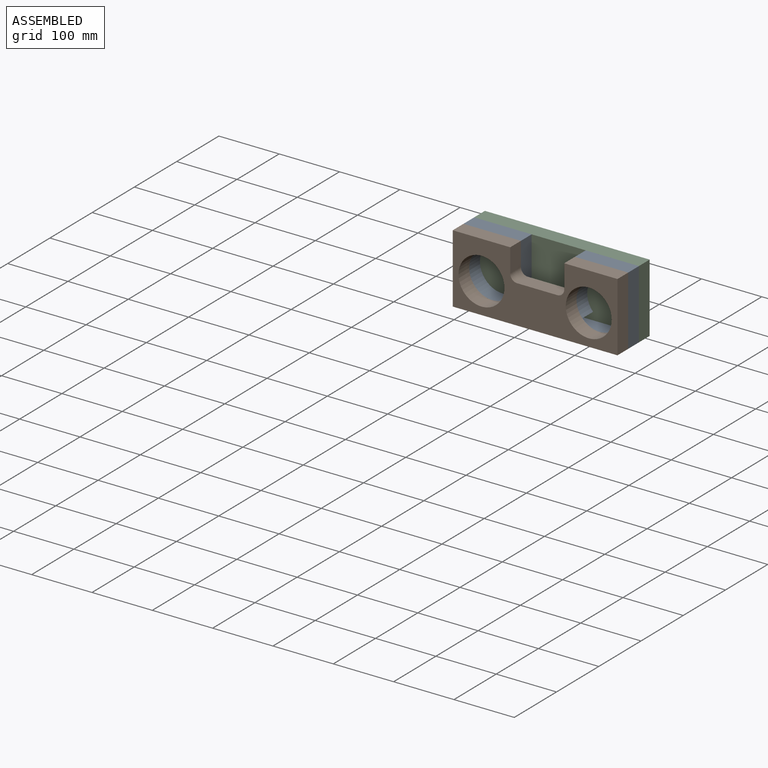
[diagram: assembled view]
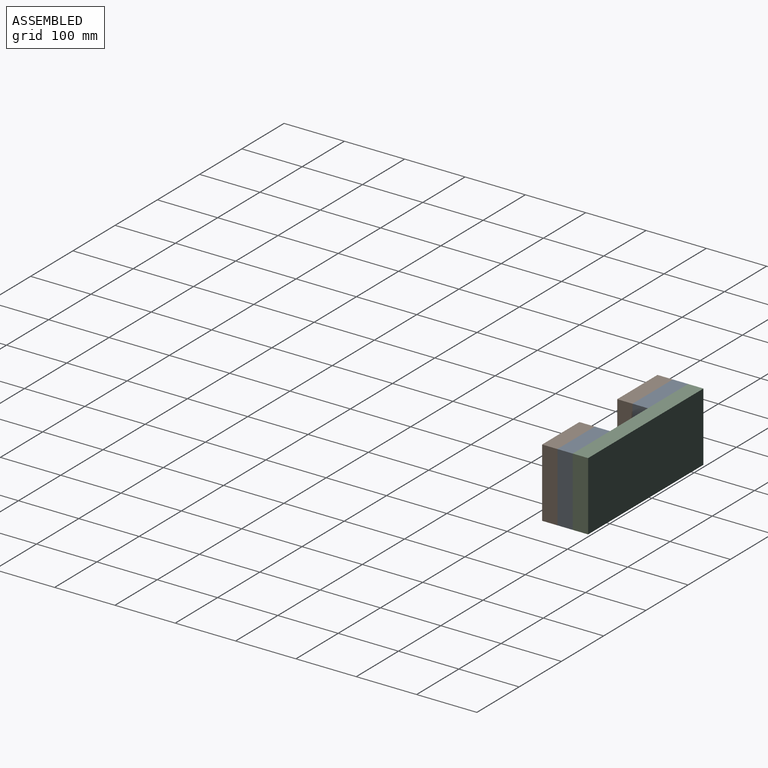
[diagram: assembled view, second angle]
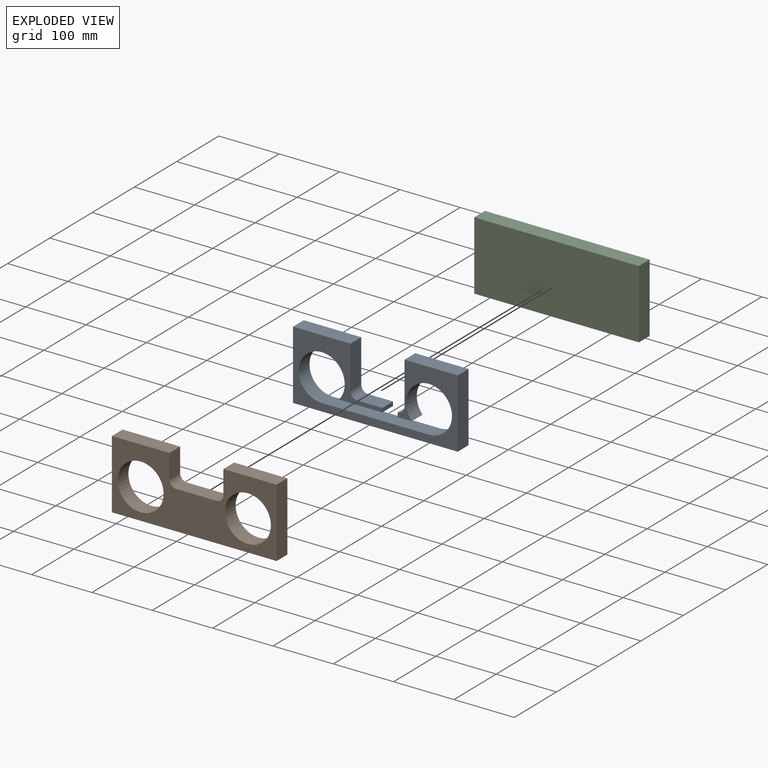
[diagram: exploded view]
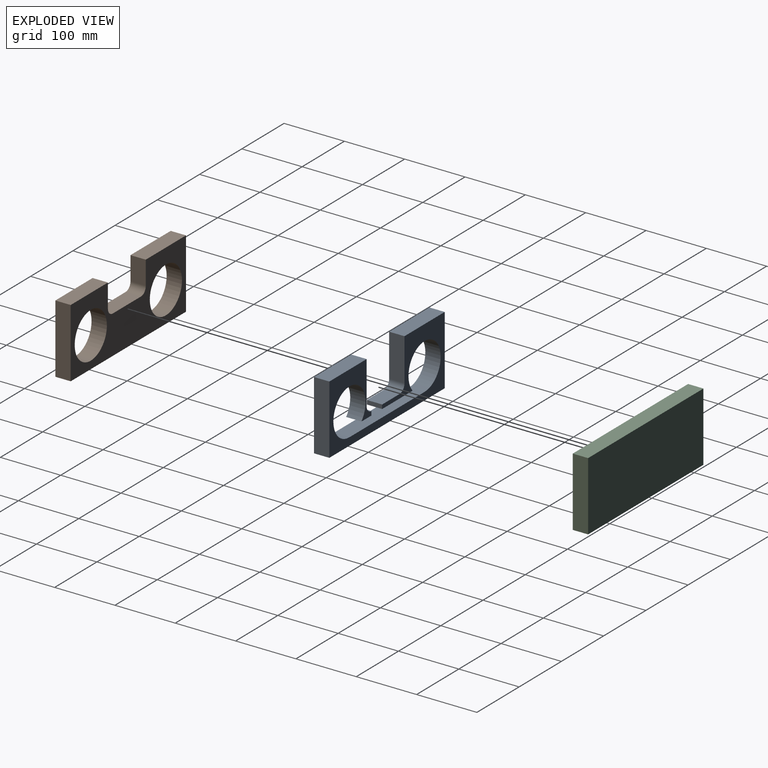
[diagram: exploded view, second angle]
ASSEMBLY  parts=3 mates=2
PART A: 19 faces, bbox 273.1x25.4x114.3 mm
  f0: plane 273.05x114.3mm, normal (0,-1,0), area 12856.5mm2, adj f1,f2,f3,f5,f6,f7,f8,f9
  f1: cylinder r=38.1mm len=76.2mm, axis (0,-1,0), area 5266.6mm2, adj f0,f4,f14,f17
  f2: plane 41.34x25.4mm, normal (0,0,1), area 1049.9mm2, adj f0,f4,f12,f16
  f3: plane 88.2x25.4mm, normal (0,0,1), area 2240.4mm2, adj f0,f4,f8,f10
  f4: plane 273.05x114.3mm, normal (0,1,0), area 12856.5mm2, adj f1,f2,f3,f5,f6,f7,f8,f9
  f5: plane 95.25x25.4mm, normal (0,0,1), area 2419.3mm2, adj f0,f4,f6,f11
  f6: plane 114.3x25.4mm, normal (-1,0,0), area 2903.2mm2, adj f0,f4,f5,f7
  f7: plane 273.05x25.4mm, normal (0,0,-1), area 6935.5mm2, adj f0,f4,f6,f8
  f8: plane 114.3x25.4mm, normal (1,0,0), area 2903.2mm2, adj f0,f3,f4,f7
  f9: cylinder r=38.1mm len=76.2mm, axis (0,-1,0), area 5266.6mm2, adj f0,f4,f14,f15
  f10: plane 70.69x25.4mm, normal (-1,0,0), area 1795.6mm2, adj f0,f3,f4,f13
  f11: plane 70.69x25.4mm, normal (1,0,0), area 1795.6mm2, adj f0,f4,f5,f12
  f12: cylinder r=11.43mm len=25.4mm, axis (0,-1,0), area 456mm2, adj f0,f2,f4,f11
  f13: cylinder r=11.43mm len=25.4mm, axis (0,-1,0), area 456mm2, adj f0,f4,f10,f18
  f14: plane 177.8x25.4mm, normal (0,0,1), area 4516.1mm2, adj f0,f1,f4,f9
  f15: plane 71.99x25.4mm, normal (0,0,-1), area 1828.6mm2, adj f0,f4,f9,f16
  f16: plane 25.4x6.78mm, normal (1,0,0), area 172.1mm2, adj f0,f2,f4,f15
  f17: plane 25.4x23.61mm, normal (0,0,-1), area 599.7mm2, adj f0,f1,f4,f18
  f18: plane 25.4x6.78mm, normal (-1,0,0), area 172.1mm2, adj f0,f4,f13,f17
PART B: 14 faces, bbox 273.1x25.4x114.3 mm
  f0: plane 88.2x25.4mm, normal (0,0,1), area 2240.4mm2, adj f1,f2,f6,f9
  f1: plane 273.05x114.3mm, normal (0,-1,0), area 17593.5mm2, adj f0,f3,f4,f5,f6,f7,f8,f9
  f2: plane 273.05x114.3mm, normal (0,1,0), area 17593.5mm2, adj f0,f3,f4,f5,f6,f7,f8,f9
  f3: plane 95.25x25.4mm, normal (0,0,1), area 2419.3mm2, adj f1,f2,f4,f10
  f4: plane 114.3x25.4mm, normal (-1,0,0), area 2903.2mm2, adj f1,f2,f3,f5
  f5: plane 273.05x25.4mm, normal (0,0,-1), area 6935.5mm2, adj f1,f2,f4,f6
  f6: plane 114.3x25.4mm, normal (1,0,0), area 2903.2mm2, adj f0,f1,f2,f5
  f7: cylinder r=38.1mm len=76.2mm, axis (0,-1,0), area 6080.5mm2, adj f1,f2
  f8: cylinder r=38.1mm len=76.2mm, axis (0,-1,0), area 6080.5mm2, adj f1,f2
  f9: plane 39.37x25.4mm, normal (-1,0,0), area 1000mm2, adj f0,f1,f2,f13
  f10: plane 39.37x25.4mm, normal (1,0,0), area 1000mm2, adj f1,f2,f3,f11
  f11: cylinder r=11.43mm len=25.4mm, axis (0,-1,0), area 456mm2, adj f1,f2,f10,f12
  f12: plane 66.74x25.4mm, normal (0,0,1), area 1695.1mm2, adj f1,f2,f11,f13
  f13: cylinder r=11.43mm len=25.4mm, axis (0,-1,0), area 456mm2, adj f1,f2,f9,f12
PART C: 6 faces, bbox 273.1x25.4x114.3 mm
  f0: plane 273.05x25.4mm, normal (0,0,1), area 6935.5mm2, adj f1,f3,f4,f5
  f1: plane 114.3x25.4mm, normal (-1,0,0), area 2903.2mm2, adj f0,f2,f4,f5
  f2: plane 273.05x25.4mm, normal (0,0,-1), area 6935.5mm2, adj f1,f3,f4,f5
  f3: plane 114.3x25.4mm, normal (1,0,0), area 2903.2mm2, adj f0,f2,f4,f5
  f4: plane 273.05x114.3mm, normal (0,-1,0), area 31209.6mm2, adj f0,f1,f2,f3
  f5: plane 273.05x114.3mm, normal (0,1,0), area 31209.6mm2, adj f0,f1,f2,f3
PLACE A t=(-119.87,-23.93,-33.37)mm
PLACE B t=(-119.87,-49.33,-33.37)mm
PLACE C t=(-119.87,1.47,-33.37)mm
MATE parallel C.f4 <-> A.f4  axis (0,-1,0) through (16.65,-23.93,-33.37)mm
MATE parallel B.f2 <-> A.f0  axis (0,1,0) through (16.65,-49.33,-33.37)mm
